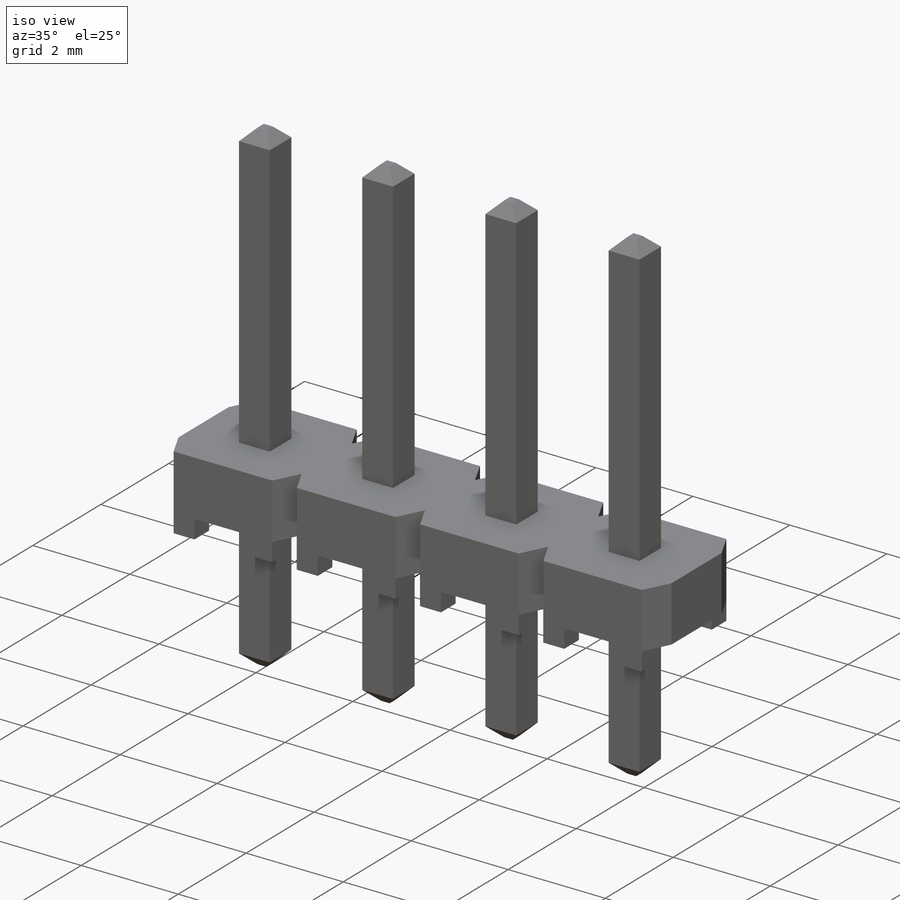
[diagram: iso view]
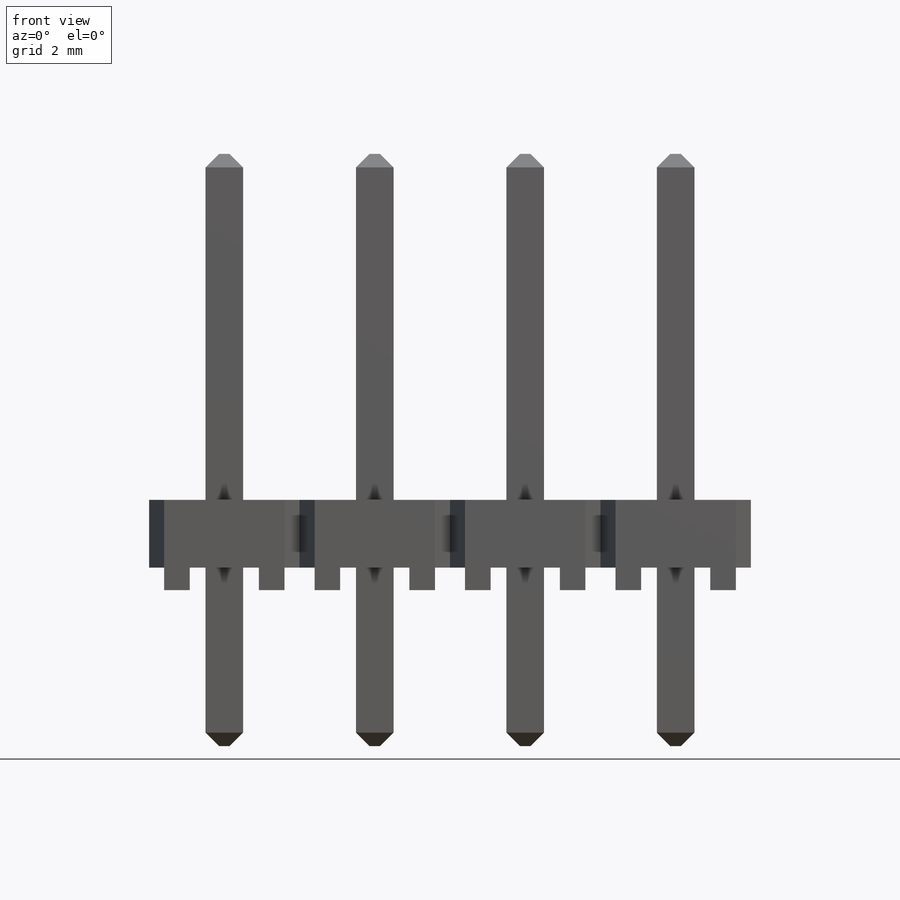
[diagram: front view]
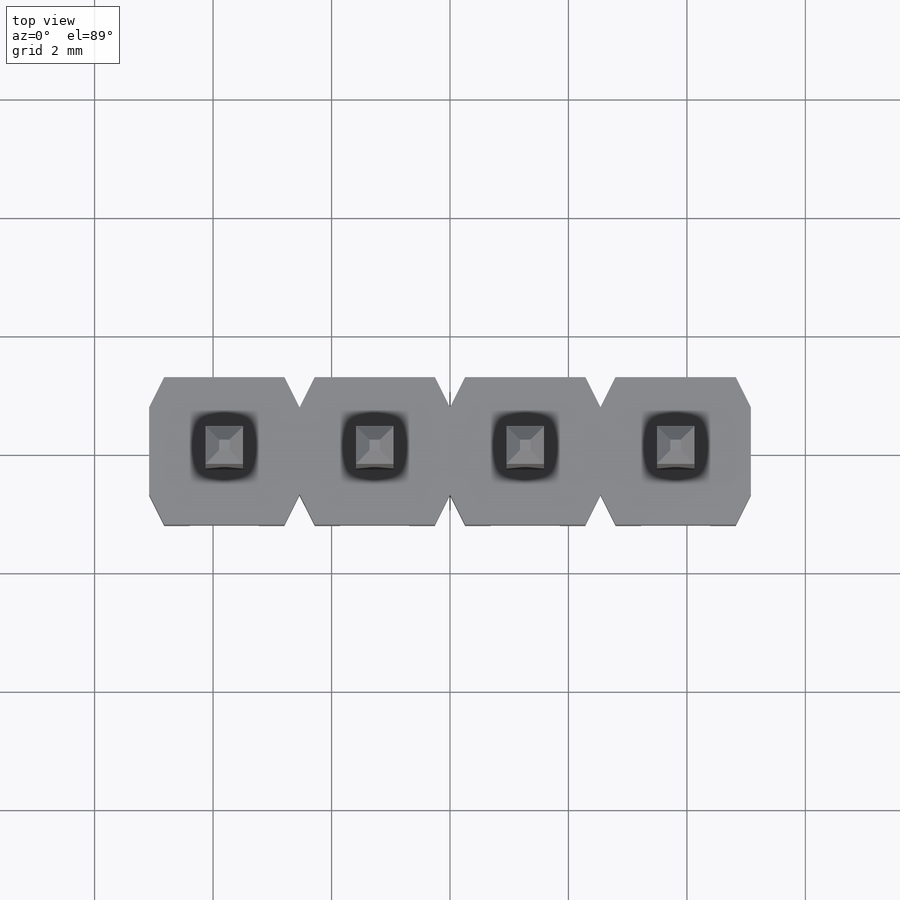
[diagram: top view]
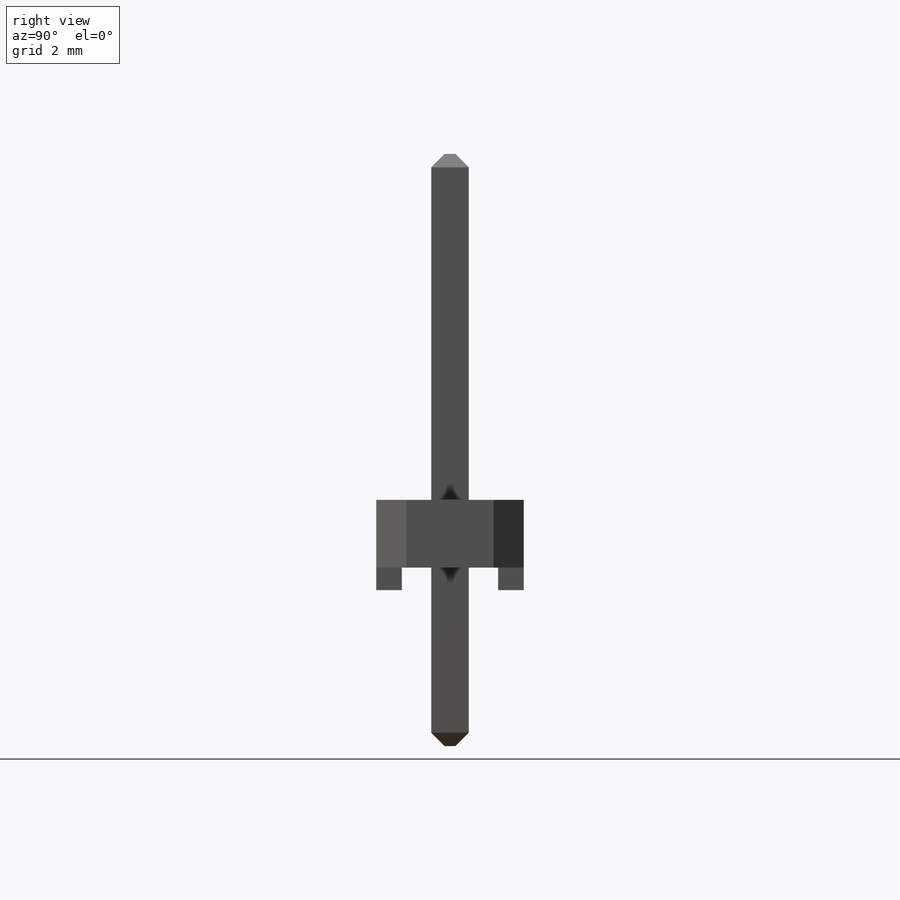
[diagram: right view]
SOLIDWORKS PART (.sldprt)
format: sldprt  version: not decoded by parser v0  size: 360,448 bytes
history: native  units: mm
features: plane x6, sketch x4, extrude x3, pattern_linear x2, material x1, cut_extrude x1, chamfer x1 (+13 scaffold rows collapsed)
feature tree (31):
  scaffold x13  (default folders/planes/origin — collapsed)
  material  "Material <sin especificar>"
  plane  "Side"
  sketch  "Sketch1"  dims[D1=10.16mm D2=2.4892mm]
  extrude  "Base-Extrude"  Depth=1.143mm
  sketch  "Sketch3"  dims[c1.D1=0.508mm c1.D2=0.508mm c1.D3=1.27mm c1.D4=1.27mm c2.D3=1.27mm]
  cut_extrude  "Snap Grooves"  [1 undecoded]
  sketch  "Sketch4"  dims[D1=0.4318mm D2=0.4318mm D3=1.27mm]
  extrude  "Standoffs"  Depth=0.381mm
  pattern_linear  "Position Pattern"  Count1=4 Count2=1 Spacing1=2.54mm Spacing2=50mm
  plane  "Position 1 Plane"  Offset=1.27mm
  sketch  "Sketch5"  dims[D1=1.2446mm D2=0.635mm D3=5.842mm D4=10.0mm]
  extrude  "Terminal -TH"  Depth=0.635mm
  chamfer  "T1 Tip1"  Distance=0.2286mm Angle=45deg
  pattern_linear  "Terminal Pattern"  Count1=1 Count2=4 Spacing1=2.54mm Spacing2=2.54mm
  plane  "Initial -S Polarize Plane"  Offset=1.27mm
  plane  "-S Polarize Plane"  Offset=2.54mm
  plane  "Initial -D Polarize Plane"  Offset=1.27mm
  plane  "-D Polarize Plane"  Offset=1.27mm
decode coverage: 10 of 11 modeling features carry decoded parameters
note: 1 parameter value undecoded
note: suppression state not decoded; provenance and decode notes live in map.json
